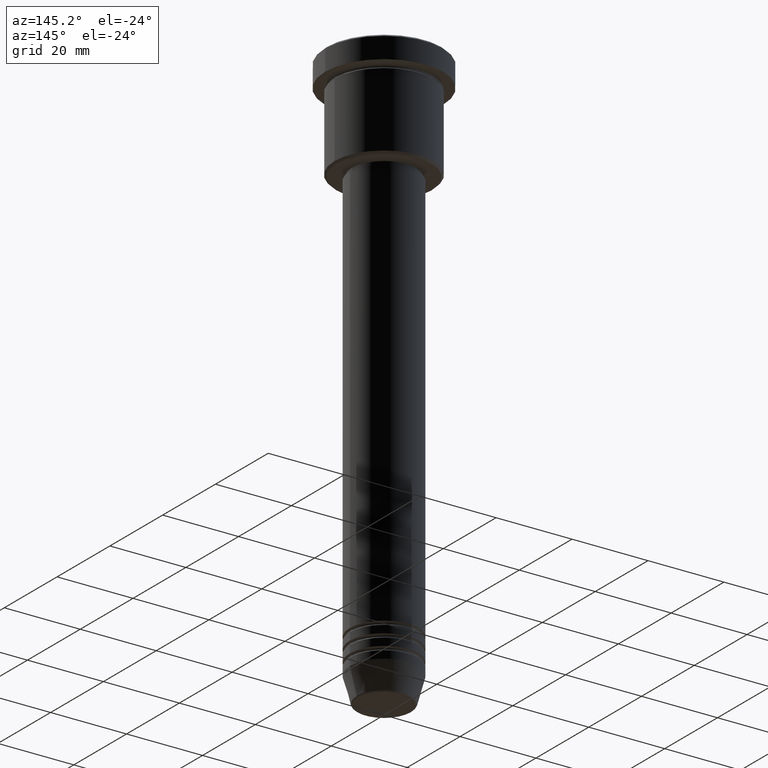
[diagram: clean part render]
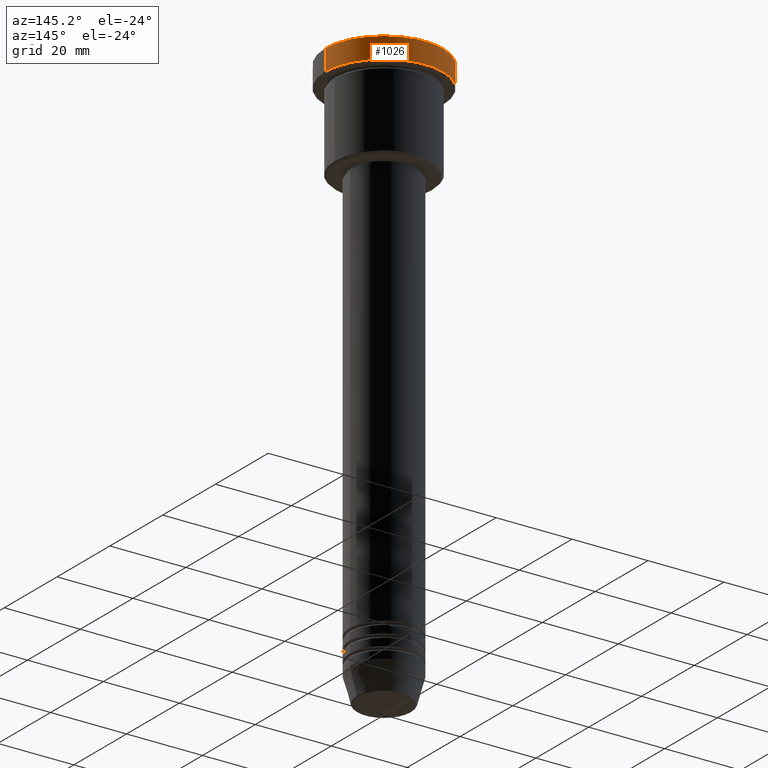
[diagram: same view with one face highlighted and labeled with its STEP entity id]
A machine part, auxiliary view. The second image highlights one B-rep face of the part: STEP entity #1026.
In plain terms, the highlighted cylindrical surface (partial cylindrical patch) has radius 15.5 mm, axis along (-0, -0, 1).
Its self-contained STEP definition (entity closure, byte-faithful):
#20 = ORIENTED_EDGE ( 'NONE', *, *, #37, .F. ) ;
#37 = EDGE_CURVE ( 'NONE', #1130, #760, #888, .T. ) ;
#45 = DIRECTION ( 'NONE',  ( 1.000000000000000000, 0.000000000000000000, 0.000000000000000000 ) ) ;
#122 = DIRECTION ( 'NONE',  ( -0.000000000000000000, -0.000000000000000000, 1.000000000000000000 ) ) ;
#136 = VECTOR ( 'NONE', #964, 1000.000000000000000 ) ;
#170 = VERTEX_POINT ( 'NONE', #442 ) ;
#179 = CYLINDRICAL_SURFACE ( 'NONE', #486, 15.50000000000000000 ) ;
#262 = EDGE_CURVE ( 'NONE', #621, #170, #458, .T. ) ;
#333 = EDGE_CURVE ( 'NONE', #1130, #621, #865, .T. ) ;
#351 = DIRECTION ( 'NONE',  ( 1.000000000000000000, 0.000000000000000000, 0.000000000000000000 ) ) ;
#356 = CARTESIAN_POINT ( 'NONE',  ( 0.000000000000000000, 0.000000000000000000, 0.000000000000000000 ) ) ;
#383 = CARTESIAN_POINT ( 'NONE',  ( 15.50000000000000000, 0.000000000000000000, -5.999999999999995559 ) ) ;
#393 = ORIENTED_EDGE ( 'NONE', *, *, #333, .T. ) ;
#442 = CARTESIAN_POINT ( 'NONE',  ( -15.50000000000000000, 1.898202538678397557E-15, -0.4999999999999987232 ) ) ;
#458 = LINE ( 'NONE', #563, #827 ) ;
#476 = DIRECTION ( 'NONE',  ( 1.000000000000000000, 0.000000000000000000, 0.000000000000000000 ) ) ;
#486 = AXIS2_PLACEMENT_3D ( 'NONE', #356, #737, #351 ) ;
#492 = EDGE_LOOP ( 'NONE', ( #393, #1007, #767, #20 ) ) ;
#551 = CARTESIAN_POINT ( 'NONE',  ( -15.50000000000000000, 1.898202538678397557E-15, -5.999999999999995559 ) ) ;
#563 = CARTESIAN_POINT ( 'NONE',  ( -15.50000000000000000, 1.898202538678397557E-15, 0.000000000000000000 ) ) ;
#592 = CARTESIAN_POINT ( 'NONE',  ( 15.50000000000000000, 0.000000000000000000, 0.000000000000000000 ) ) ;
#621 = VERTEX_POINT ( 'NONE', #551 ) ;
#647 = CARTESIAN_POINT ( 'NONE',  ( 0.000000000000000000, 0.000000000000000000, -5.999999999999995559 ) ) ;
#661 = DIRECTION ( 'NONE',  ( -0.000000000000000000, -0.000000000000000000, 1.000000000000000000 ) ) ;
#679 = CARTESIAN_POINT ( 'NONE',  ( 15.50000000000000000, 0.000000000000000000, -0.4999999999999987232 ) ) ;
#697 = CIRCLE ( 'NONE', #867, 15.50000000000000000 ) ;
#737 = DIRECTION ( 'NONE',  ( -0.000000000000000000, -0.000000000000000000, 1.000000000000000000 ) ) ;
#754 = AXIS2_PLACEMENT_3D ( 'NONE', #647, #661, #476 ) ;
#760 = VERTEX_POINT ( 'NONE', #679 ) ;
#767 = ORIENTED_EDGE ( 'NONE', *, *, #783, .T. ) ;
#783 = EDGE_CURVE ( 'NONE', #170, #760, #697, .T. ) ;
#827 = VECTOR ( 'NONE', #122, 1000.000000000000000 ) ;
#860 = DIRECTION ( 'NONE',  ( 0.000000000000000000, 0.000000000000000000, -1.000000000000000000 ) ) ;
#865 = CIRCLE ( 'NONE', #754, 15.50000000000000000 ) ;
#867 = AXIS2_PLACEMENT_3D ( 'NONE', #1036, #860, #45 ) ;
#888 = LINE ( 'NONE', #592, #136 ) ;
#964 = DIRECTION ( 'NONE',  ( -0.000000000000000000, -0.000000000000000000, 1.000000000000000000 ) ) ;
#1007 = ORIENTED_EDGE ( 'NONE', *, *, #262, .T. ) ;
#1026 = ADVANCED_FACE ( 'NONE', ( #1170 ), #179, .T. ) ;
#1036 = CARTESIAN_POINT ( 'NONE',  ( 0.000000000000000000, 0.000000000000000000, -0.4999999999999987232 ) ) ;
#1130 = VERTEX_POINT ( 'NONE', #383 ) ;
#1170 = FACE_OUTER_BOUND ( 'NONE', #492, .T. ) ;